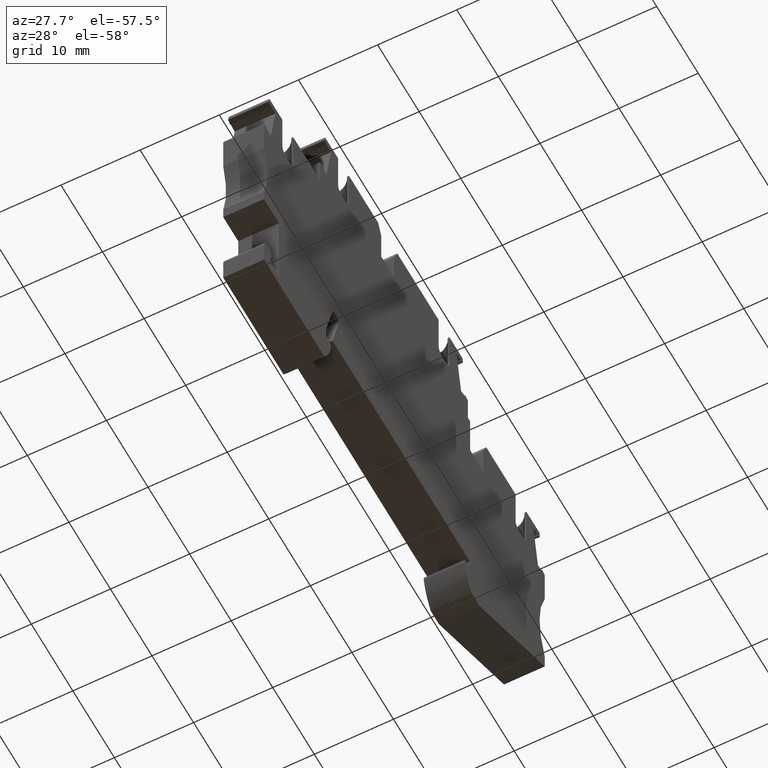
[diagram: clean part render]
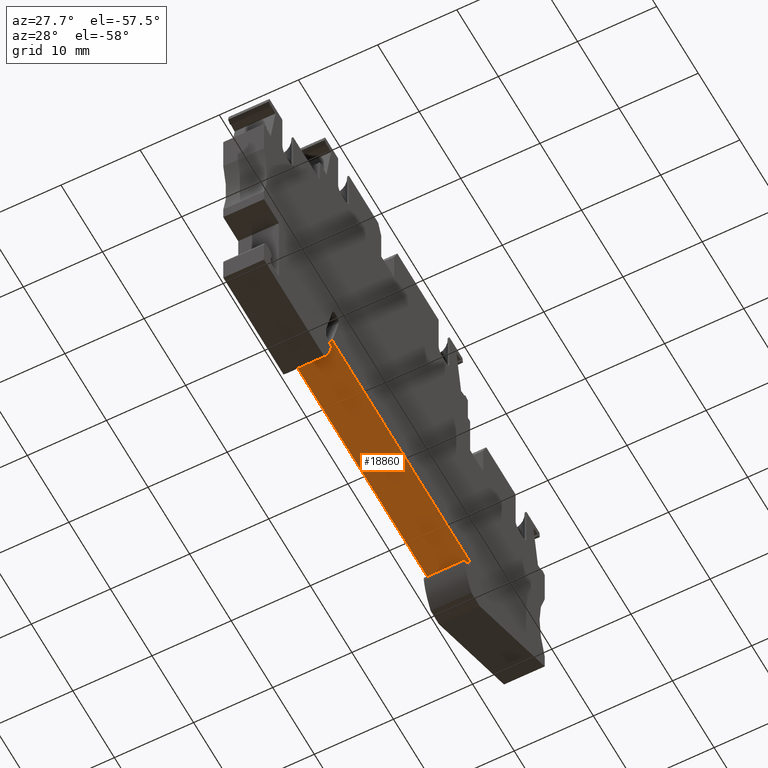
[diagram: same view with one face highlighted and labeled with its STEP entity id]
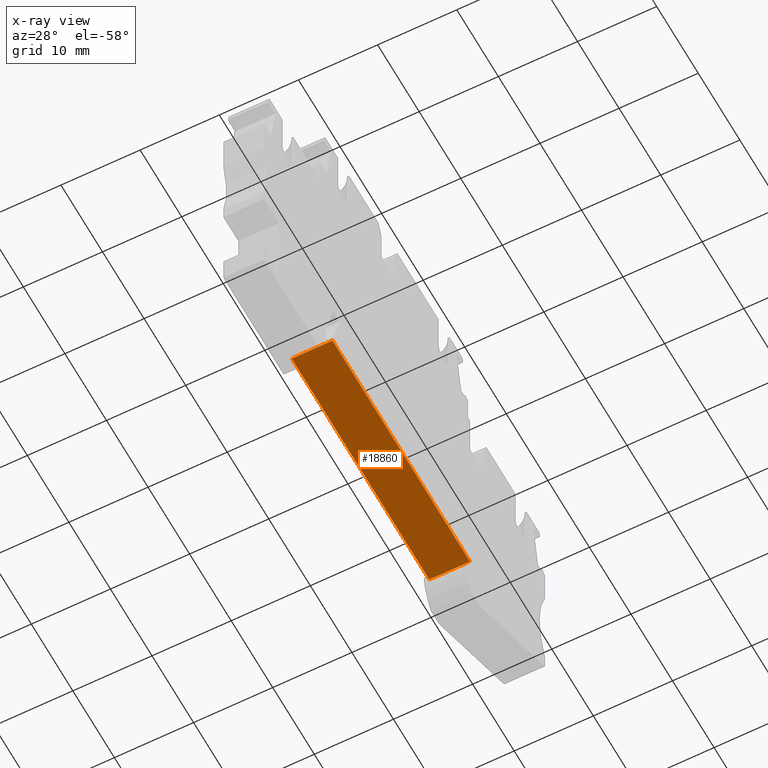
[diagram: x-ray of the same camera — body ghosted, the highlighted face saturated]
A machine part, auxiliary view. The second image highlights one B-rep face of the part: STEP entity #18860.
The next image is the same camera in x-ray: the body ghosted, the highlighted face saturated — about 0% of this face is hidden behind the body in this view.
In plain terms, the highlighted planar face has unit normal (0, 0, 1).
Its self-contained STEP definition (entity closure, byte-faithful):
#100=CARTESIAN_POINT('',(151.768635760428,2.49671382217025,48.52));
#110=VERTEX_POINT('',#100);
#160=CARTESIAN_POINT('',(14.196323,2.49671382217026,48.52));
#170=DIRECTION('',(-1.,6.93889390390723E-17,0.));
#180=VECTOR('',#170,1.);
#190=LINE('',#160,#180);
#200=CARTESIAN_POINT('',(184.868635760428,2.49671382217025,48.52));
#210=VERTEX_POINT('',#200);
#220=EDGE_CURVE('',#210,#110,#190,.T.);
#18410=CARTESIAN_POINT('',(184.868635760428,2.49671382217025,53.67));
#18420=VERTEX_POINT('',#18410);
#18470=CARTESIAN_POINT('',(184.868635760428,2.49671382217025,53.67));
#18480=DIRECTION('',(0.,0.,-1.));
#18490=VECTOR('',#18480,1.);
#18500=LINE('',#18470,#18490);
#18510=EDGE_CURVE('',#18420,#210,#18500,.T.);
#18630=CARTESIAN_POINT('',(184.868635760428,2.49671382217025,53.67));
#18640=DIRECTION('',(6.93889390390723E-17,1.,0.));
#18650=DIRECTION('',(1.,-6.93889390390723E-17,0.));
#18660=AXIS2_PLACEMENT_3D('',#18630,#18640,#18650);
#18670=PLANE('',#18660);
#18680=CARTESIAN_POINT('',(14.196323,2.49671382217026,53.67));
#18690=DIRECTION('',(-1.,6.93889390390723E-17,0.));
#18700=VECTOR('',#18690,1.);
#18710=LINE('',#18680,#18700);
#18720=CARTESIAN_POINT('',(151.768635760428,2.49671382217025,53.67));
#18730=VERTEX_POINT('',#18720);
#18740=EDGE_CURVE('',#18420,#18730,#18710,.T.);
#18750=ORIENTED_EDGE('',*,*,#18740,.T.);
#18760=ORIENTED_EDGE('',*,*,#18510,.F.);
#18770=ORIENTED_EDGE('',*,*,#220,.F.);
#18780=CARTESIAN_POINT('',(151.768635760428,2.49671382217025,53.67));
#18790=DIRECTION('',(0.,0.,1.));
#18800=VECTOR('',#18790,1.);
#18810=LINE('',#18780,#18800);
#18820=EDGE_CURVE('',#110,#18730,#18810,.T.);
#18830=ORIENTED_EDGE('',*,*,#18820,.F.);
#18840=EDGE_LOOP('',(#18830,#18770,#18760,#18750));
#18850=FACE_OUTER_BOUND('',#18840,.T.);
#18860=ADVANCED_FACE('',(#18850),#18670,.F.);